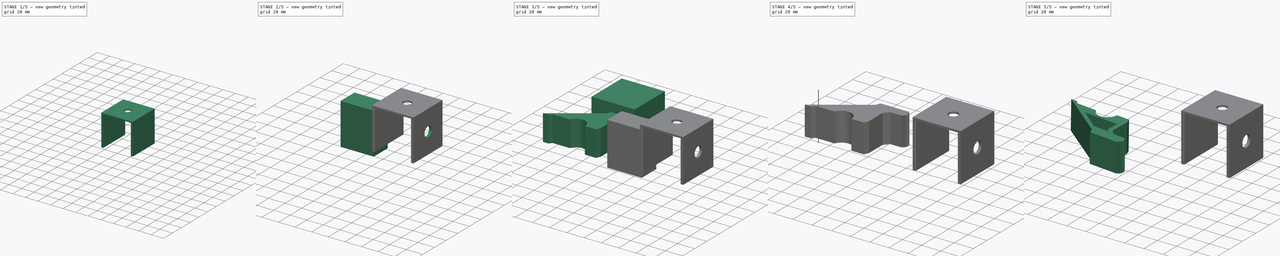
[diagram: build sequence overview — one tinted view per stage of 5, left to right]
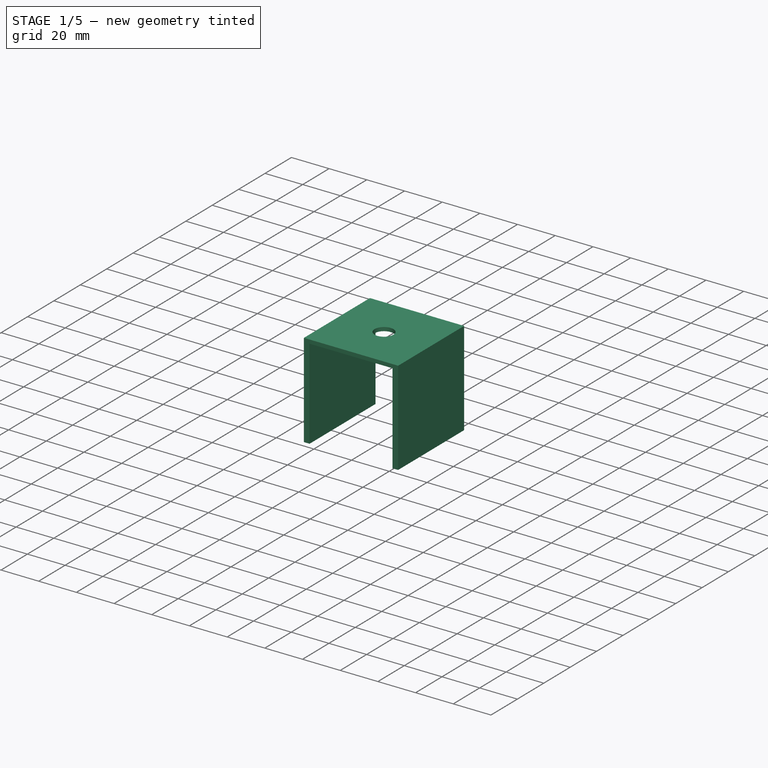
[diagram: stage 1 of 5 — iso view after this stage's code; geometry added in this stage tinted green]
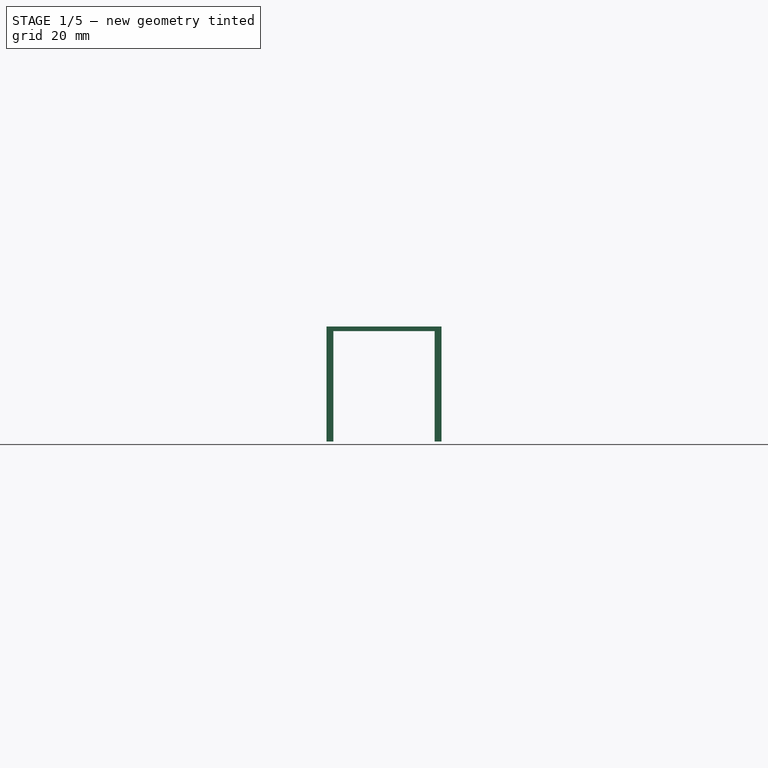
[diagram: stage 1 of 5 — front view after this stage's code; geometry added in this stage tinted green]
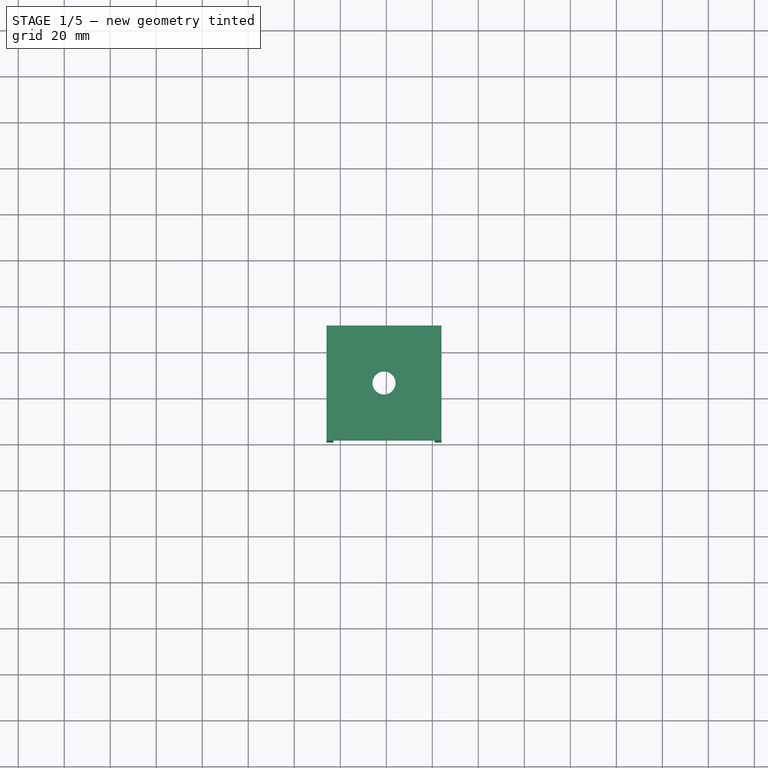
[diagram: stage 1 of 5 — top view after this stage's code; geometry added in this stage tinted green]
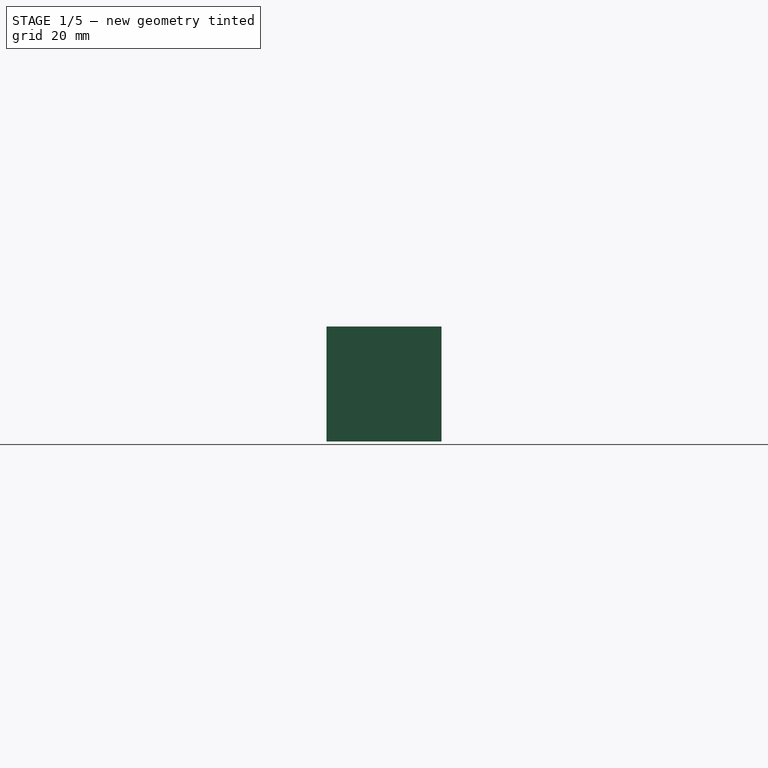
[diagram: stage 1 of 5 — right view after this stage's code; geometry added in this stage tinted green]
FCSTD DOCUMENT  (FreeCAD 0.16R6712 (Git))
Label: pinza2
License: All rights reserved
LicenseURL: http://en.wikipedia.org/wiki/All_rights_reserved
objects: Sketcher::SketchObject×4, Part::Box×4, Part::Cut×4, PartDesign::Pocket×3, PartDesign::Pad×2, Part::Part2DObjectPython×2, App::DocumentObjectGroup×2, Part::Cylinder×1, Part::FeaturePython×1, Part::Fuse×1, Part::Mirroring×1, PartDesign::Fillet×1
note: 29 computed .brp shape members not serialized (recipe doc carries the construction recipe); baked Part::Feature solids carry a one-line shape summary decoded from their .brp

FEATURE [Part::Box] Box002  label="Cubo002"
  Height = 50
  Length = 50
  Placement = pos=(114,-39,0) rot=(0,0,1;0rad)
  Width = 50
FEATURE [Sketcher::SketchObject] Sketch002
  Placement = pos=(114,-39,50) rot=(0,0,1;0rad)
  Support = -> Box002 [Face6]
  sketch-geometry (1):
    g0: Circle CenterX=25 CenterY=25 CenterZ=0 NormalX=0 NormalY=0 NormalZ=1 Radius=5.00393
FEATURE [PartDesign::Pocket] Pocket001
  Length = 58
  Placement = pos=(114,-39,0) rot=(0,0,1;0rad)
  Sketch = -> Sketch002
  Type = 0
FEATURE [Part::Box] Box003  label="Cubo003"
  Height = 50
  Length = 44
  Placement = pos=(117,-42,-2) rot=(0,0,1;0rad)
  Width = 60
FEATURE [Part::Cut] Cut003
  Base = -> Pocket001
  Tool = -> Box003
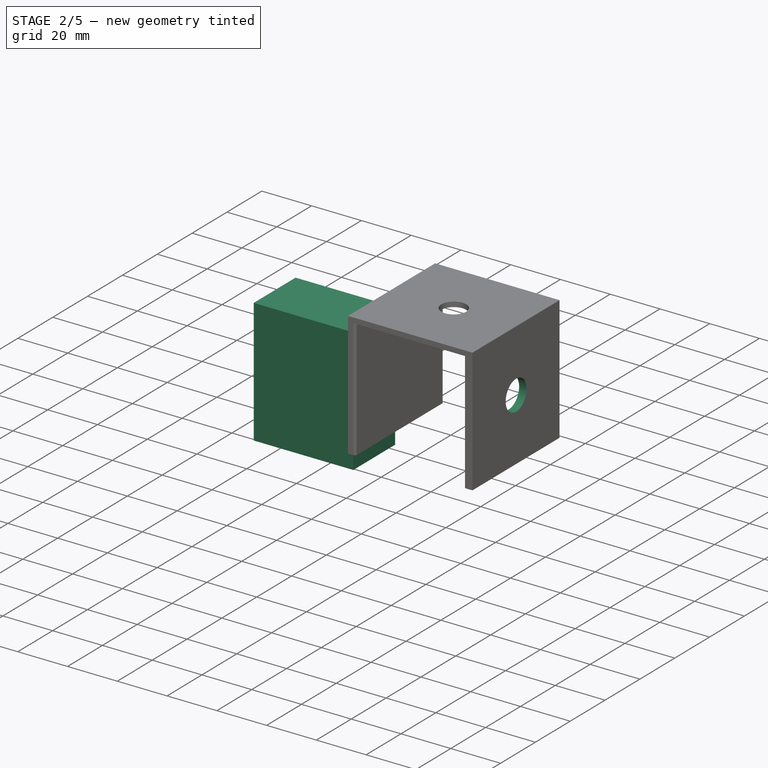
[diagram: stage 2 of 5 — iso view after this stage's code; geometry added in this stage tinted green]
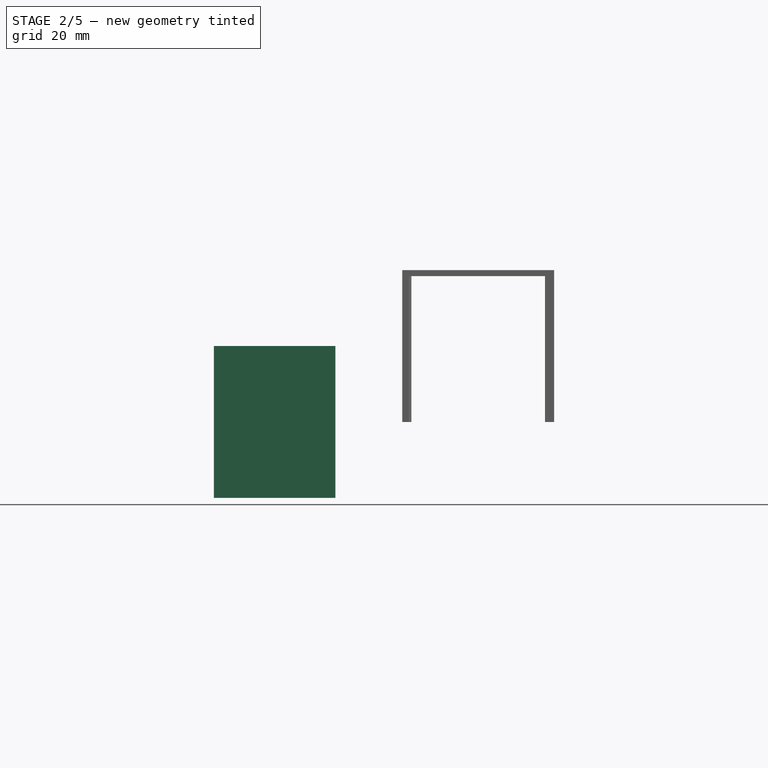
[diagram: stage 2 of 5 — front view after this stage's code; geometry added in this stage tinted green]
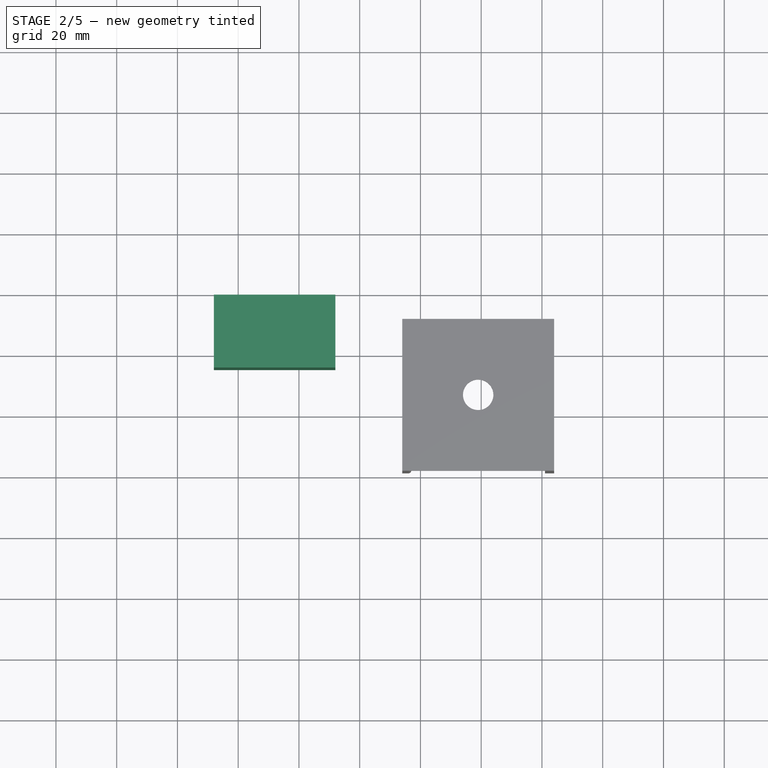
[diagram: stage 2 of 5 — top view after this stage's code; geometry added in this stage tinted green]
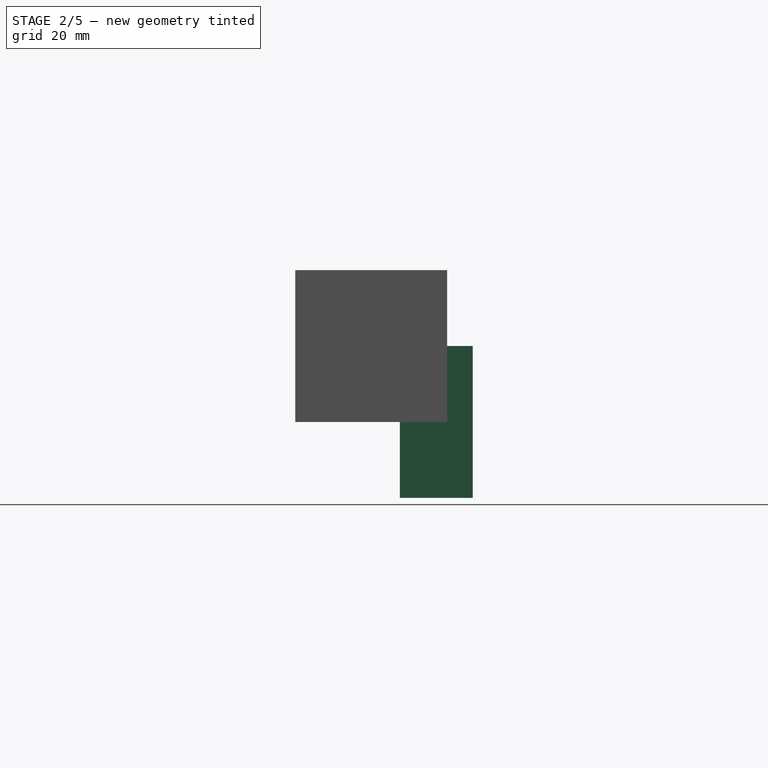
[diagram: stage 2 of 5 — right view after this stage's code; geometry added in this stage tinted green]
FEATURE [Part::Box] Box001  label="Cubo001"
  Height = 50
  Length = 40
  Placement = pos=(52,-4.57,-25) rot=(0,0,1;0rad)
  Width = 24
FEATURE [Sketcher::SketchObject] Sketch003
  Placement = pos=(164,0,0) rot=(0.57735,0.57735,0.57735;2.0944rad)
  Support = -> Cut003 [Face10]
  sketch-geometry (2):
    g0: LineSegment [constr] StartX=-38.9311 StartY=0 StartZ=0 EndX=-13.9311 EndY=0 EndZ=0
    g1: Circle CenterX=-13.9311 CenterY=25 CenterZ=0 NormalX=0 NormalY=0 NormalZ=1 Radius=6
  constraints (4):
    c: PointOnObject(g0,g-1)
    c: Horizontal(g0)
    c: DistanceY(g0,g1) = 25
    c: Radius(g1) = 6
FEATURE [PartDesign::Pocket] Pocket002
  Length = 5
  Sketch = -> Sketch003
  Type = 0
FEATURE [Part::Part2DObjectPython] InvoluteGear001  # Draft 2D object (typed FeaturePython)
  ExternalGear = true
  HighPrecision = true
  Modules = 0.5
  NumberOfTeeth = 20
  PressureAngle = 20
FEATURE [App::DocumentObjectGroup] Grupo  label="pinza"
  Group = -> [Cut002,Pocket,mirror,InvoluteGear001]
FEATURE [PartDesign::Fillet] Fillet
  Base = -> Pocket002 [Edge6]
  Radius = 1
FEATURE [App::DocumentObjectGroup] Grupo001  label="cajamotor"
  Group = -> [Box002,Cut003,Pocket002,Fillet]
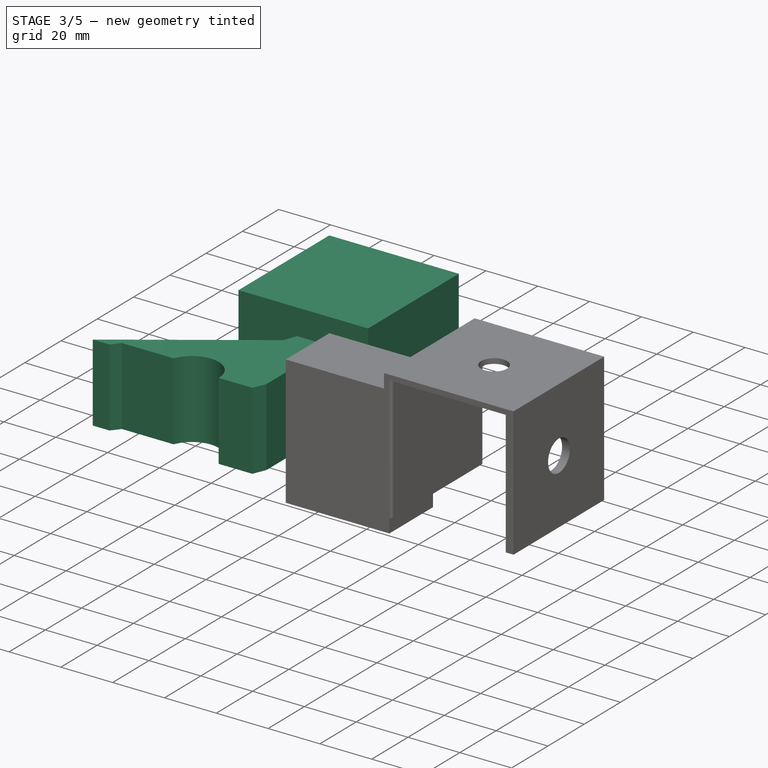
[diagram: stage 3 of 5 — iso view after this stage's code; geometry added in this stage tinted green]
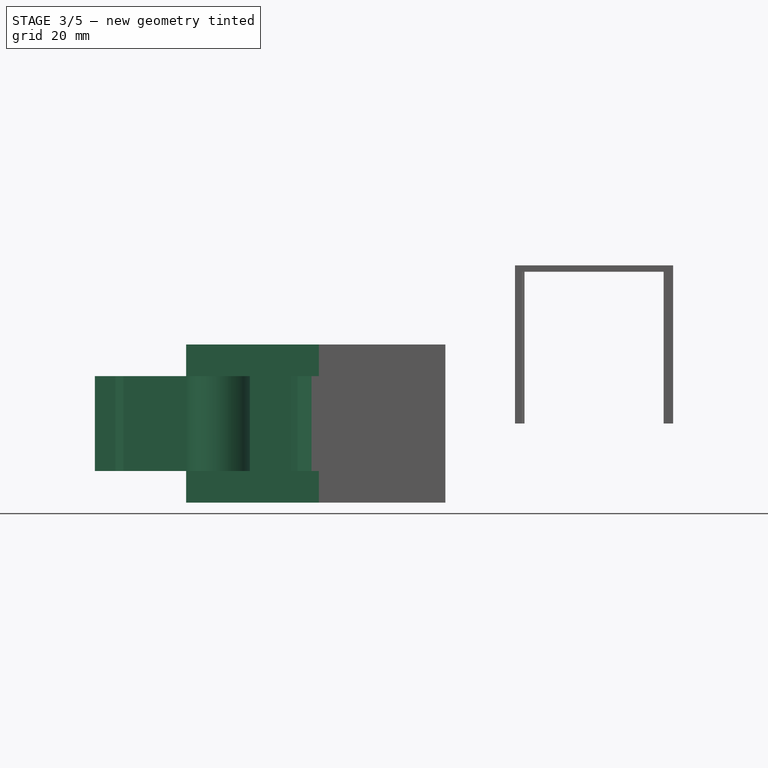
[diagram: stage 3 of 5 — front view after this stage's code; geometry added in this stage tinted green]
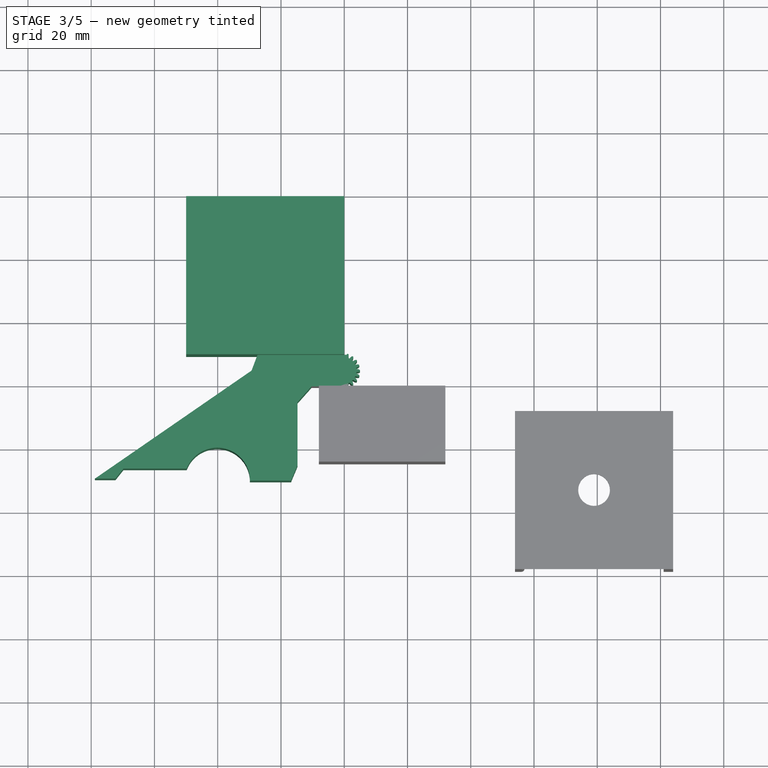
[diagram: stage 3 of 5 — top view after this stage's code; geometry added in this stage tinted green]
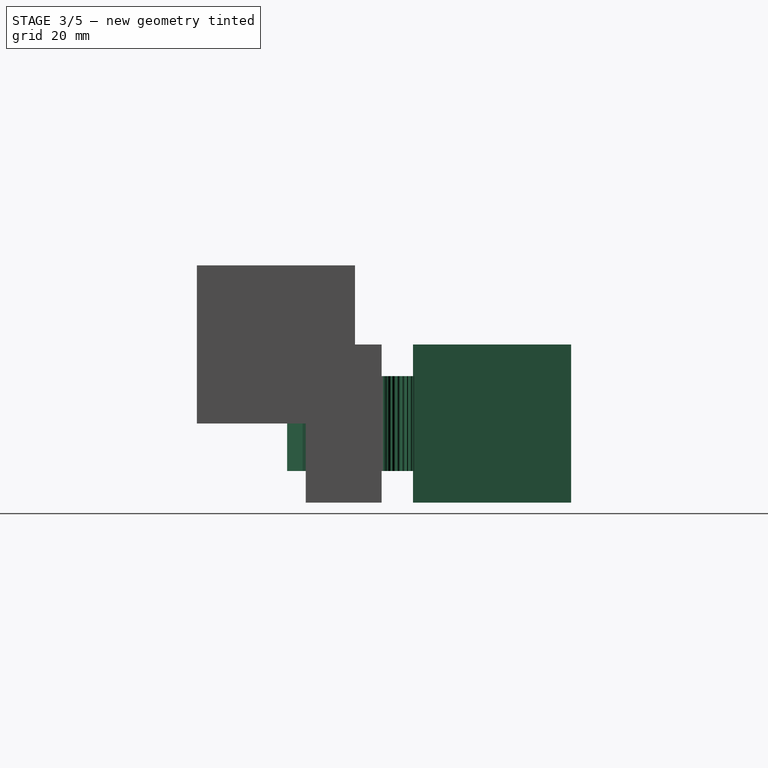
[diagram: stage 3 of 5 — right view after this stage's code; geometry added in this stage tinted green]
FEATURE [PartDesign::Pad] Pad
  Length = 30
  Length2 = 100
  Midplane = true
  Sketch = -> Sketch
  Type = 0
FEATURE [Part::Part2DObjectPython] InvoluteGear  # Draft 2D object (typed FeaturePython)
  ExternalGear = true
  HighPrecision = true
  Modules = 0.5
  NumberOfTeeth = 20
  Placement = pos=(59.4931,24.4135,0) rot=(0,0,1;0rad)
  PressureAngle = 20
FEATURE [PartDesign::Pad] Pad001
  Length = 30
  Length2 = 100
  Midplane = true
  Placement = pos=(59.4931,24.4135,0) rot=(0,0,1;0rad)
  Sketch = -> InvoluteGear
  Type = 0
FEATURE [Part::Fuse] Fusion
  Base = -> Pad
  Tool = -> Pad001
FEATURE [Part::Box] Box  label="Cubo"
  Height = 50
  Length = 50
  Placement = pos=(10,29.36,-25) rot=(0,0,1;0rad)
  Width = 50
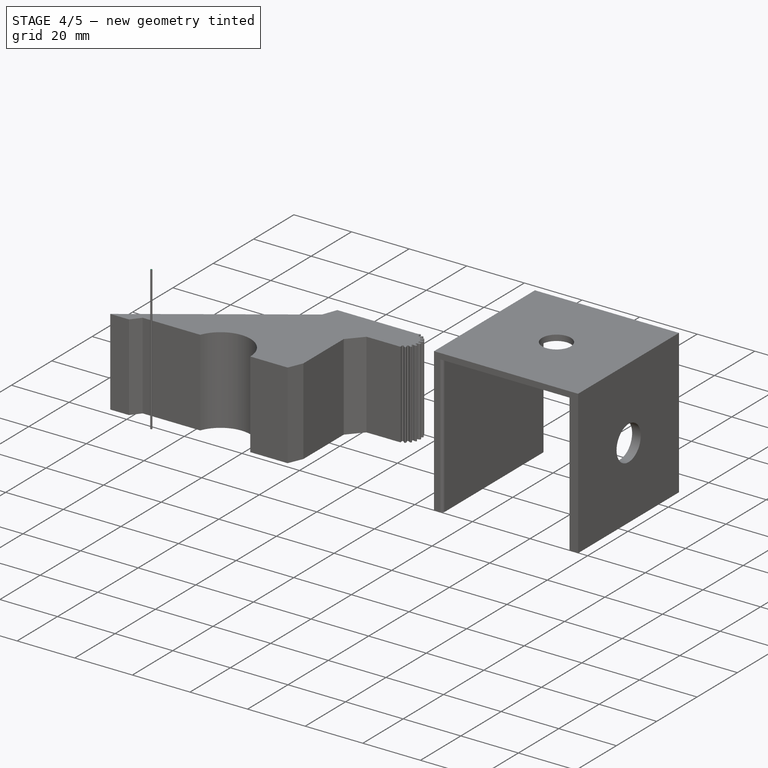
[diagram: stage 4 of 5 — iso view after this stage's code; geometry added in this stage tinted green]
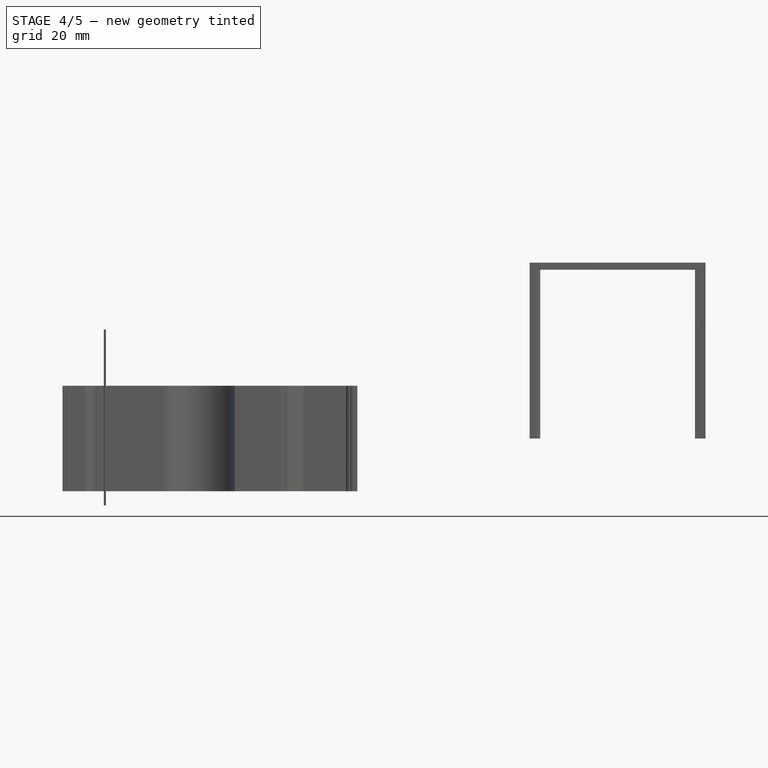
[diagram: stage 4 of 5 — front view after this stage's code; geometry added in this stage tinted green]
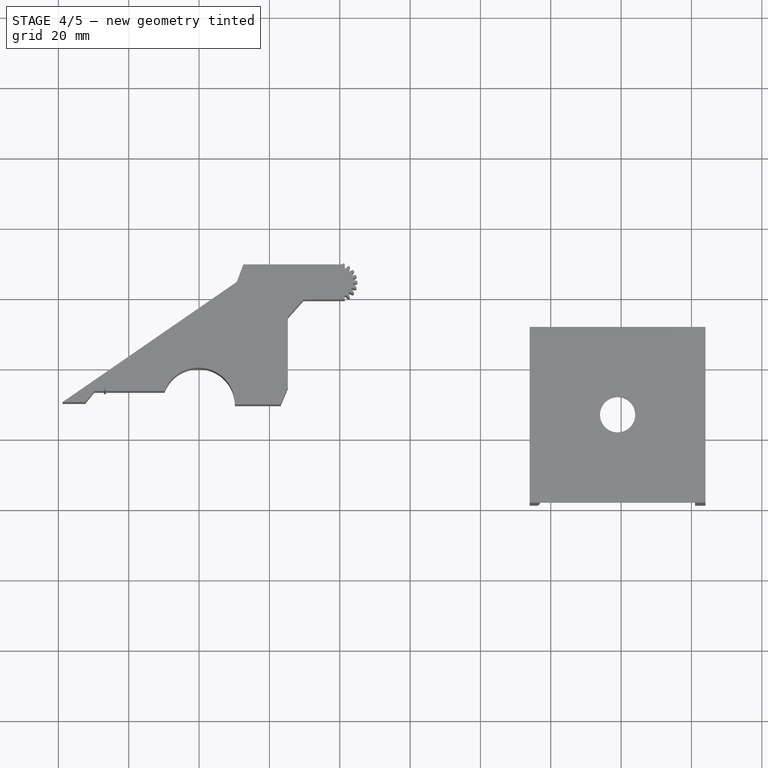
[diagram: stage 4 of 5 — top view after this stage's code; geometry added in this stage tinted green]
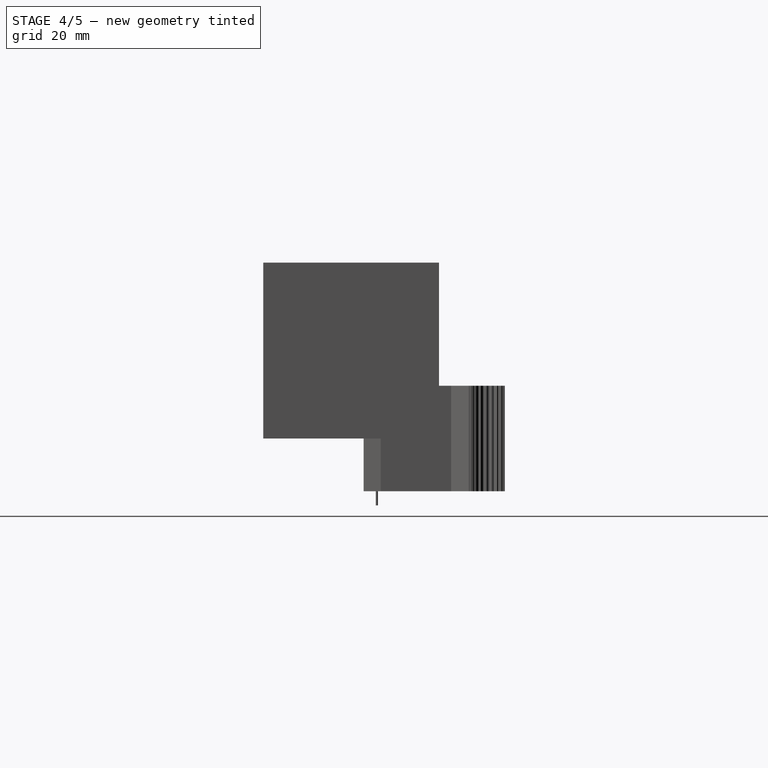
[diagram: stage 4 of 5 — right view after this stage's code; geometry added in this stage tinted green]
FEATURE [Sketcher::SketchObject] Sketch
  sketch-geometry (13):
    g0: LineSegment StartX=-18.8413 StartY=-9.7927 StartZ=0 EndX=-12.3413 EndY=-9.7927 EndZ=0
    g1: LineSegment StartX=-12.3413 StartY=-9.7927 StartZ=0 EndX=-9.81753 EndY=-6.63476 EndZ=0
    g2: LineSegment StartX=-9.81753 StartY=-6.63476 StartZ=0 EndX=10.1825 EndY=-6.63476 EndZ=0
    g3: LineSegment StartX=30.1825 StartY=-10.434 StartZ=0 EndX=43.1825 EndY=-10.434 EndZ=0
    g4: LineSegment StartX=43.1825 StartY=-10.434 StartZ=0 EndX=45.2341 EndY=-5.56487 EndZ=0
    g5: LineSegment StartX=45.2341 StartY=-5.56487 StartZ=0 EndX=45.2341 EndY=14.4351 EndZ=0
    g6: LineSegment StartX=45.2341 StartY=14.4351 StartZ=0 EndX=49.6587 EndY=19.4001 EndZ=0
    g7: LineSegment StartX=49.6587 StartY=19.4001 StartZ=0 EndX=61.1587 EndY=19.4001 EndZ=0
    g8: LineSegment StartX=61.1587 StartY=19.4001 StartZ=0 EndX=61.1587 EndY=29.4001 EndZ=0
    g9: LineSegment StartX=61.1587 StartY=29.4001 StartZ=0 EndX=32.5971 EndY=29.4001 EndZ=0
    g10: LineSegment StartX=32.5971 StartY=29.4001 StartZ=0 EndX=30.7058 EndY=24.3889 EndZ=0
    g11: LineSegment StartX=30.7058 StartY=24.3889 StartZ=0 EndX=-18.8413 EndY=-9.7927 EndZ=0
    g12: ArcOfCircle CenterX=19.8387 CenterY=-10.3442 CenterZ=0 NormalX=0 NormalY=0 NormalZ=1 Radius=10.3442 StartAngle=6.27451 EndAngle=9.05801
  constraints (15):
    c: DistanceY(g8,g8) = 10
    c: Coincident(g9,g8)
    c: Horizontal(g9)
    c: Coincident(g10,g9)
    c: Coincident(g10,g11)
    c: Coincident(g12,g3)
    c: Coincident(g4,g3)
    c: Coincident(g5,g4)
    c: Coincident(g6,g5)
    c: Coincident(g7,g6)
    c: Coincident(g7,g8)
    c: Horizontal(g7)
    c: Coincident(g11,g0)
    c: Coincident(g1,g0)
    c: Coincident(g12,g2)
FEATURE [Part::Cylinder] Cylinder  label="Cilindro"
  Angle = 360
  Height = 50
  Placement = pos=(-6.75458,-6.7,-19) rot=(0,0,1;0rad)
  Radius = 0.3
FEATURE [Part::Cut] Cut
  Base = -> Fusion
  Tool = -> Box
FEATURE [Part::Cut] Cut001
  Base = -> Cut
  Tool = -> Box001
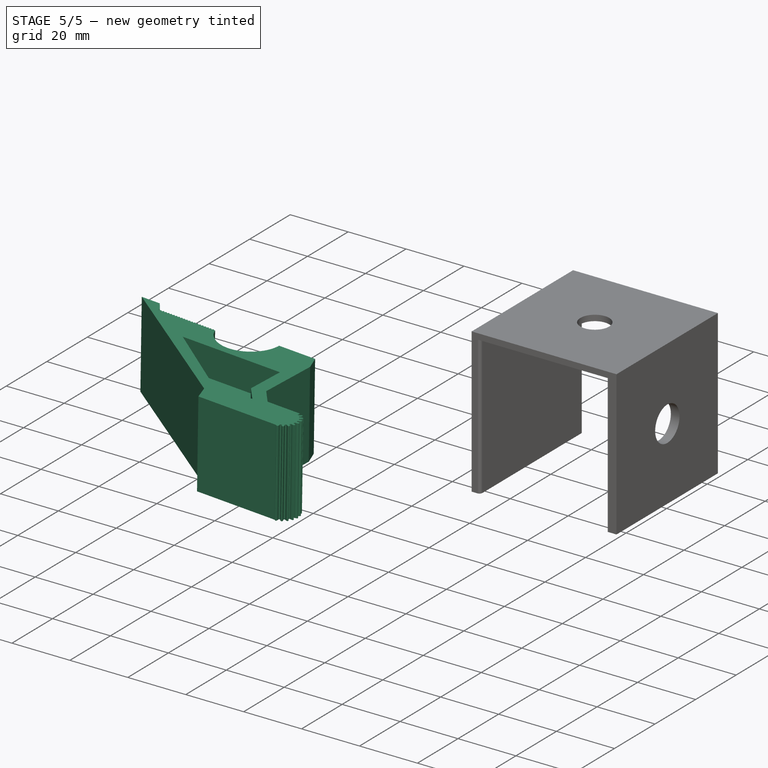
[diagram: stage 5 of 5 — iso view after this stage's code; geometry added in this stage tinted green]
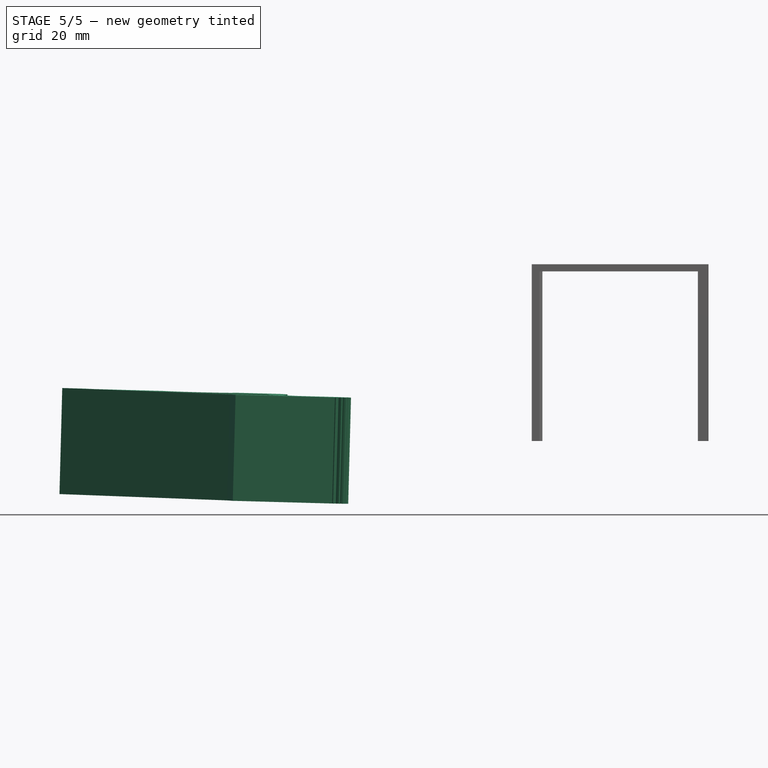
[diagram: stage 5 of 5 — front view after this stage's code; geometry added in this stage tinted green]
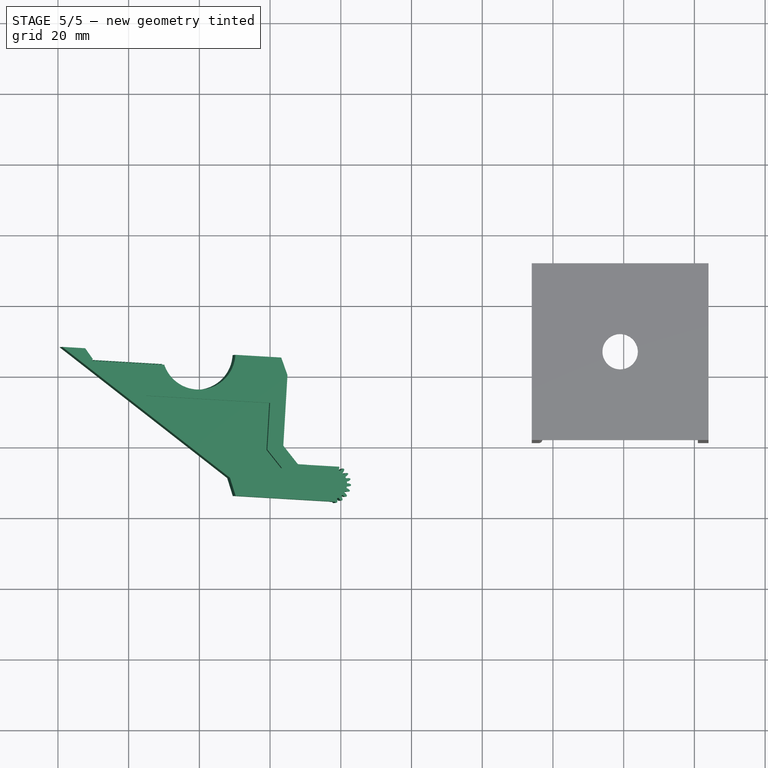
[diagram: stage 5 of 5 — top view after this stage's code; geometry added in this stage tinted green]
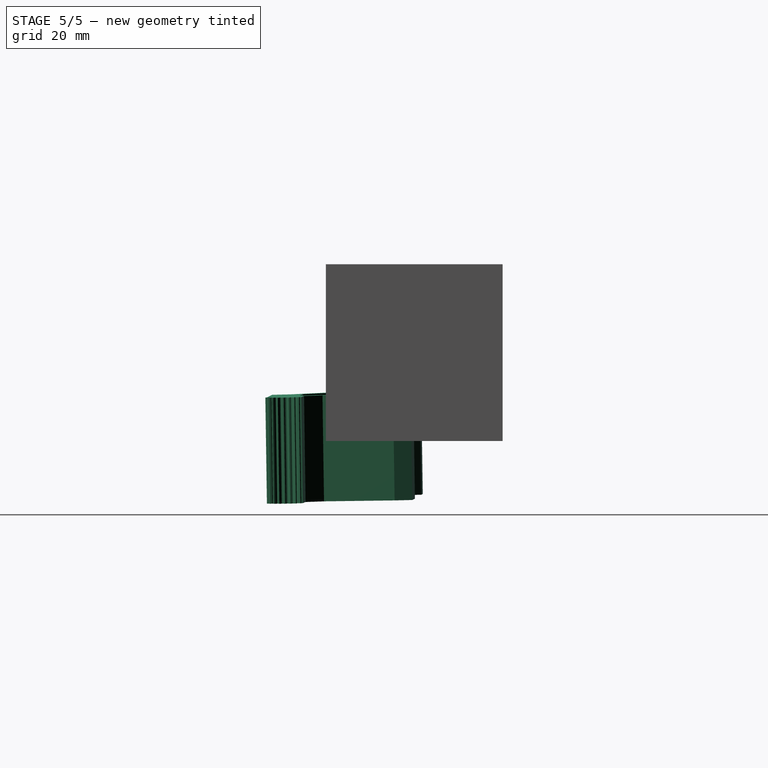
[diagram: stage 5 of 5 — right view after this stage's code; geometry added in this stage tinted green]
FEATURE [Part::FeaturePython] PathArray  # WARN: FeaturePython — macro-defined, semantics opaque (R4)
  Align = false
  Base = -> Cylinder
  Count = 35
  Placement = pos=(0,0,-20) rot=(0,0,1;0rad)
  Xlate = (0,0,0)
FEATURE [Part::Cut] Cut002  label="Pinza final"
  Base = -> Cut001
  Tool = -> PathArray
FEATURE [Sketcher::SketchObject] Sketch001
  Placement = pos=(0,0,15) rot=(0,0,1;0rad)
  Support = -> Cut002 [Face141]
  sketch-geometry (5):
    g0: LineSegment StartX=5.73122 StartY=2.5808 StartZ=0 EndX=30.9939 EndY=20.7974 EndZ=0
    g1: LineSegment StartX=30.9939 StartY=20.7974 StartZ=0 EndX=45.2578 EndY=20.7974 EndZ=0
    g2: LineSegment StartX=45.2578 StartY=20.7974 StartZ=0 EndX=40.7896 EndY=15.8136 EndZ=0
    g3: LineSegment StartX=40.7896 StartY=15.8136 StartZ=0 EndX=40.7896 EndY=2.5808 EndZ=0
    g4: LineSegment StartX=40.7896 StartY=2.5808 StartZ=0 EndX=5.73122 EndY=2.5808 EndZ=0
  constraints (8):
    c: Coincident(g0,g1)
    c: Horizontal(g1)
    c: Coincident(g1,g2)
    c: Coincident(g2,g3)
    c: Vertical(g3)
    c: Coincident(g3,g4)
    c: Coincident(g4,g0)
    c: Horizontal(g4)
FEATURE [PartDesign::Pocket] Pocket
  Length = 10
  Sketch = -> Sketch001
  Type = 0
FEATURE [Part::Mirroring] mirror  label="Mirror of Pocket"
  Base = (-18.8413,-9.7927,0)
  Normal = (0.900049,0.435526,0.015102)
  Placement = pos=(-38,-2,0) rot=(0,0,1;2.18166rad)
  Source = -> Pocket
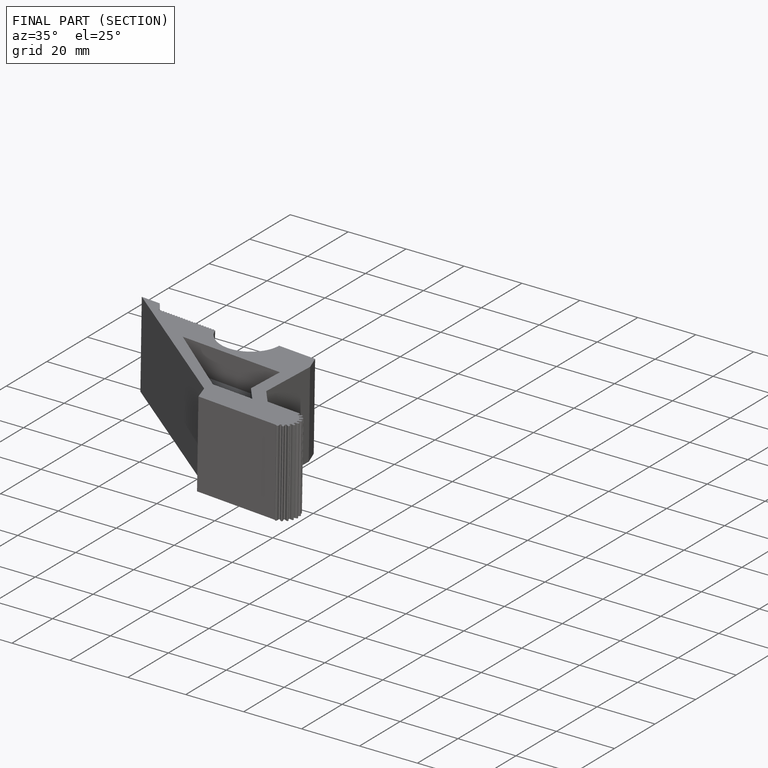
[diagram: finished part — half-section view (interior)]
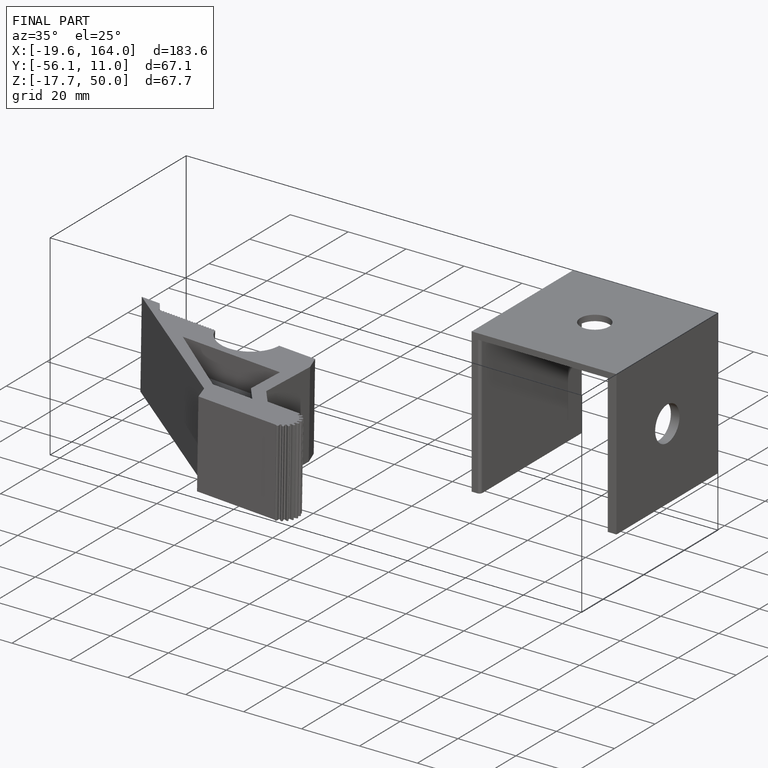
[diagram: finished part — iso view with bounding-box wireframe]
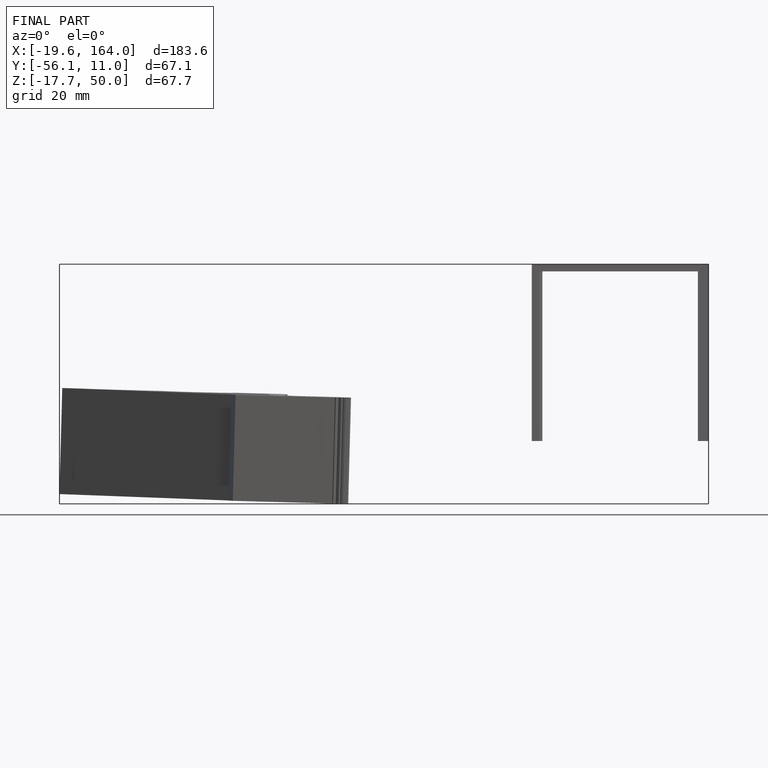
[diagram: finished part — front view with bounding-box wireframe]
